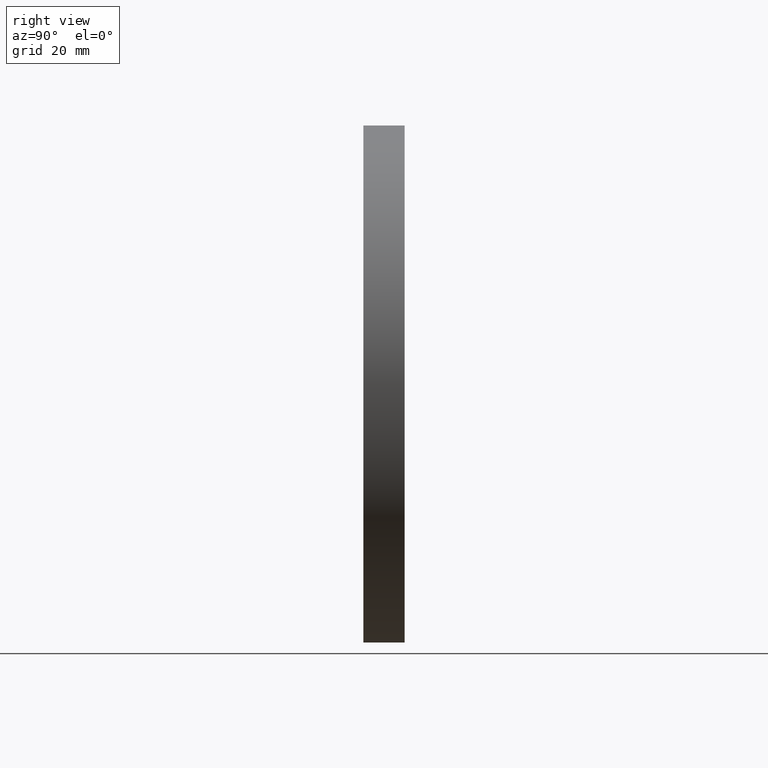
[diagram: clean part render]
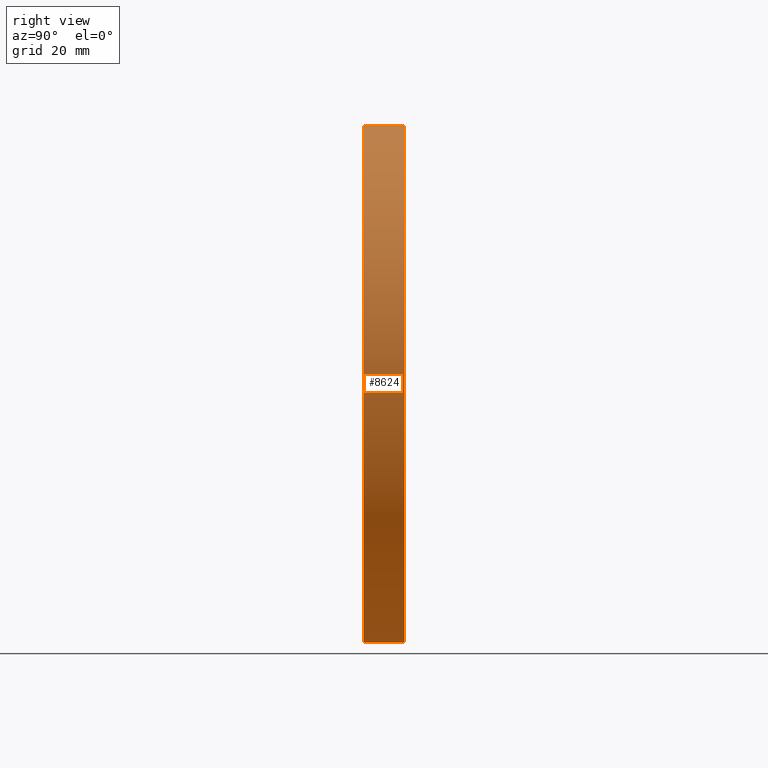
[diagram: same view with one face highlighted and labeled with its STEP entity id]
A machine part, right view. The second image highlights one B-rep face of the part: STEP entity #8624.
In plain terms, the highlighted cylindrical surface (partial cylindrical patch) has radius 50 mm, axis along (-0, -1, -0).
Its self-contained STEP definition (entity closure, byte-faithful):
#41 = CARTESIAN_POINT ( 'NONE',  ( 0.0000000000000000000, 8.000000000000000000, -50.00000000000000000 ) ) ;
#202 = AXIS2_PLACEMENT_3D ( 'NONE', #10241, #11260, #3399 ) ;
#327 = CARTESIAN_POINT ( 'NONE',  ( 6.123233995736766100E-015, 0.0000000000000000000, 50.00000000000000000 ) ) ;
#677 = CYLINDRICAL_SURFACE ( 'NONE', #202, 50.00000000000000000 ) ;
#844 = VERTEX_POINT ( 'NONE', #327 ) ;
#1843 = EDGE_CURVE ( 'NONE', #9905, #9825, #4971, .T. ) ;
#2104 = CARTESIAN_POINT ( 'NONE',  ( 0.0000000000000000000, 0.0000000000000000000, -50.00000000000000000 ) ) ;
#2428 = AXIS2_PLACEMENT_3D ( 'NONE', #2644, #7538, #9642 ) ;
#2644 = CARTESIAN_POINT ( 'NONE',  ( 0.0000000000000000000, 8.000000000000000000, 0.0000000000000000000 ) ) ;
#2719 = AXIS2_PLACEMENT_3D ( 'NONE', #12754, #10638, #12710 ) ;
#3086 = DIRECTION ( 'NONE',  ( -0.0000000000000000000, -1.000000000000000000, -0.0000000000000000000 ) ) ;
#3279 = EDGE_CURVE ( 'NONE', #9825, #3307, #3396, .T. ) ;
#3307 = VERTEX_POINT ( 'NONE', #2104 ) ;
#3396 = LINE ( 'NONE', #9834, #8560 ) ;
#3399 = DIRECTION ( 'NONE',  ( 0.0000000000000000000, 0.0000000000000000000, -1.000000000000000000 ) ) ;
#3500 = FACE_OUTER_BOUND ( 'NONE', #6947, .T. ) ;
#3782 = ORIENTED_EDGE ( 'NONE', *, *, #3279, .F. ) ;
#4395 = ORIENTED_EDGE ( 'NONE', *, *, #1843, .F. ) ;
#4971 = CIRCLE ( 'NONE', #2428, 50.00000000000000000 ) ;
#5421 = CARTESIAN_POINT ( 'NONE',  ( 6.123233995736766100E-015, 8.000000000000000000, 50.00000000000000000 ) ) ;
#6001 = CARTESIAN_POINT ( 'NONE',  ( 6.123233995736766100E-015, 8.000000000000000000, 50.00000000000000000 ) ) ;
#6947 = EDGE_LOOP ( 'NONE', ( #4395, #12367, #9750, #3782 ) ) ;
#7257 = DIRECTION ( 'NONE',  ( -0.0000000000000000000, -1.000000000000000000, -0.0000000000000000000 ) ) ;
#7538 = DIRECTION ( 'NONE',  ( 0.0000000000000000000, 1.000000000000000000, 0.0000000000000000000 ) ) ;
#8491 = CIRCLE ( 'NONE', #2719, 50.00000000000000000 ) ;
#8560 = VECTOR ( 'NONE', #3086, 1000.000000000000000 ) ;
#8624 = ADVANCED_FACE ( 'NONE', ( #3500 ), #677, .T. ) ;
#9642 = DIRECTION ( 'NONE',  ( 0.0000000000000000000, 0.0000000000000000000, 1.000000000000000000 ) ) ;
#9750 = ORIENTED_EDGE ( 'NONE', *, *, #10201, .T. ) ;
#9825 = VERTEX_POINT ( 'NONE', #41 ) ;
#9834 = CARTESIAN_POINT ( 'NONE',  ( 0.0000000000000000000, 8.000000000000000000, -50.00000000000000000 ) ) ;
#9905 = VERTEX_POINT ( 'NONE', #6001 ) ;
#10201 = EDGE_CURVE ( 'NONE', #844, #3307, #8491, .T. ) ;
#10241 = CARTESIAN_POINT ( 'NONE',  ( 0.0000000000000000000, 8.000000000000000000, 0.0000000000000000000 ) ) ;
#10447 = EDGE_CURVE ( 'NONE', #9905, #844, #12244, .T. ) ;
#10638 = DIRECTION ( 'NONE',  ( 0.0000000000000000000, 1.000000000000000000, 0.0000000000000000000 ) ) ;
#11260 = DIRECTION ( 'NONE',  ( -0.0000000000000000000, -1.000000000000000000, -0.0000000000000000000 ) ) ;
#11288 = VECTOR ( 'NONE', #7257, 1000.000000000000000 ) ;
#12244 = LINE ( 'NONE', #5421, #11288 ) ;
#12367 = ORIENTED_EDGE ( 'NONE', *, *, #10447, .T. ) ;
#12710 = DIRECTION ( 'NONE',  ( 0.0000000000000000000, 0.0000000000000000000, 1.000000000000000000 ) ) ;
#12754 = CARTESIAN_POINT ( 'NONE',  ( 0.0000000000000000000, 0.0000000000000000000, 0.0000000000000000000 ) ) ;